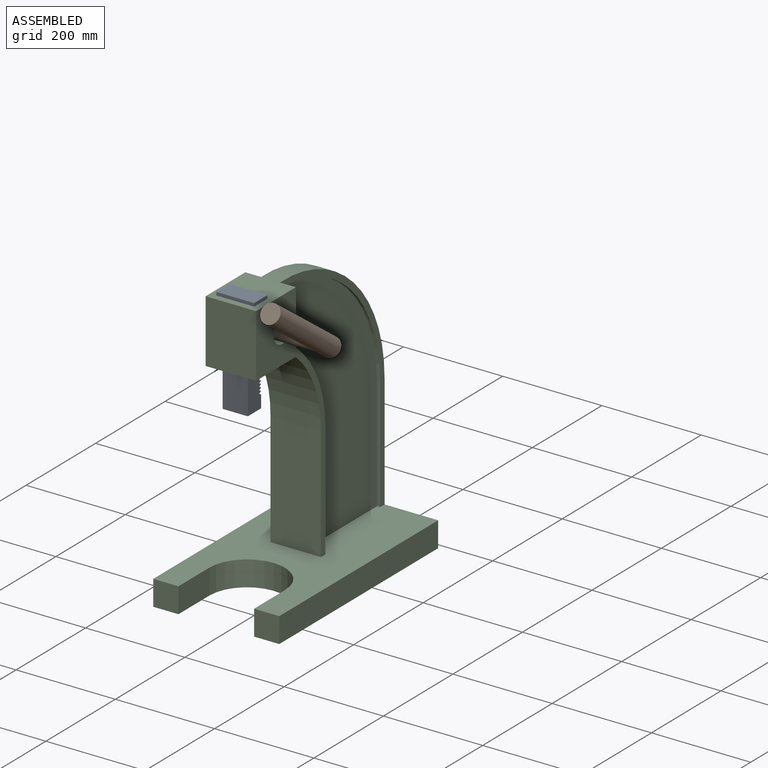
[diagram: assembled view]
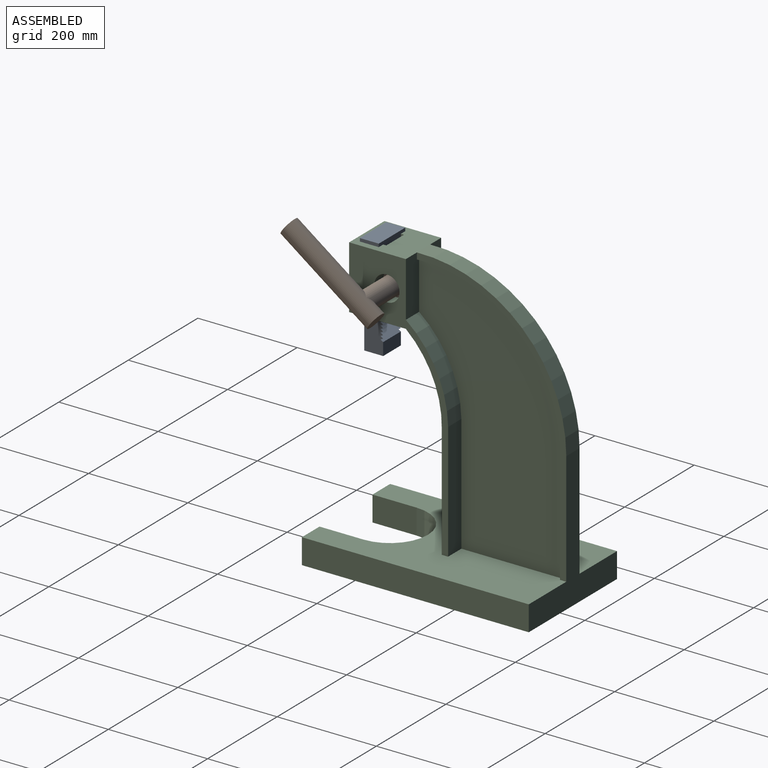
[diagram: assembled view, second angle]
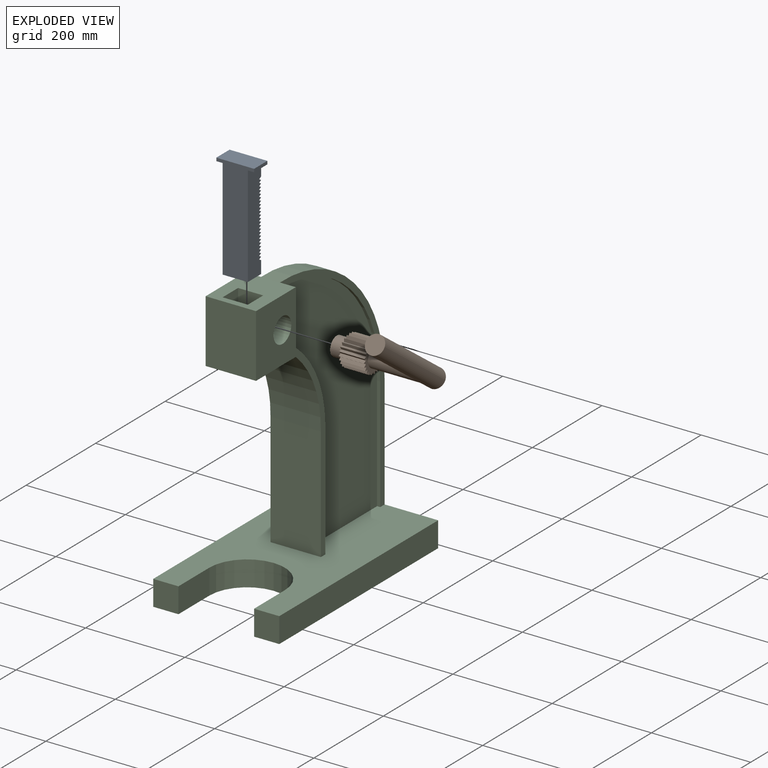
[diagram: exploded view]
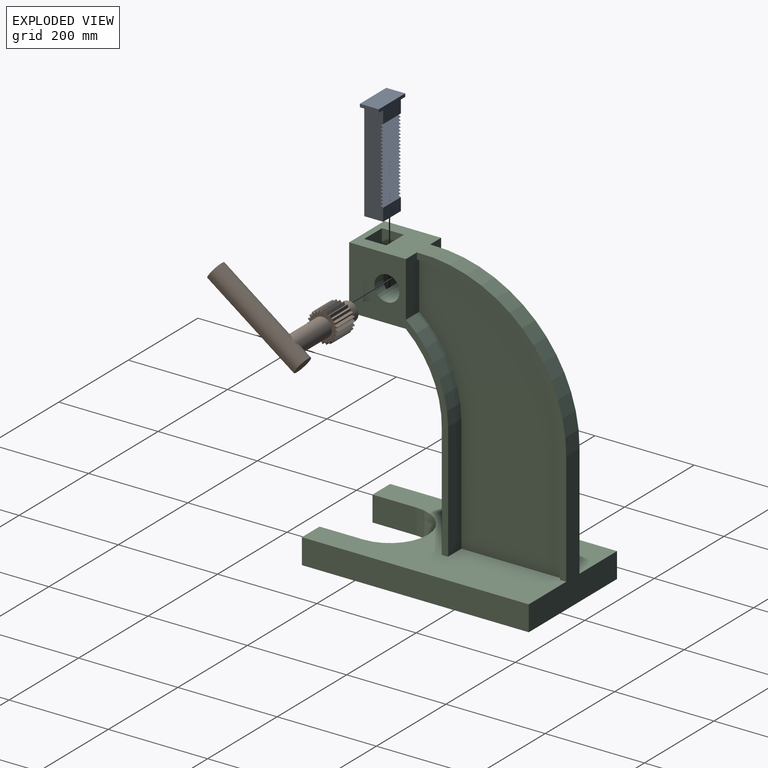
[diagram: exploded view, second angle]
ASSEMBLY  parts=3 mates=2
PART A: 59 faces, bbox 76.2x38.1x209.6 mm
  f0: plane 203.2x38.1mm, normal (-1,0,0), area 7322.9mm2, adj f1,f3,f4,f9,f10,f11,f12,f13
  f1: plane 76.2x31.75mm, normal (0,1,0), area 1774.2mm2, adj f0,f2,f3,f5,f6,f7,f8,f33
  f2: plane 38.1x6.35mm, normal (-1,0,0), area 241.9mm2, adj f1,f3,f8,f9
  f3: plane 38.1x12.7mm, normal (0,0,-1), area 483.9mm2, adj f0,f1,f2,f9
  f4: plane 50.8x38.1mm, normal (0,0,-1), area 1935.5mm2, adj f0,f5,f9,f10
  f5: plane 203.2x38.1mm, normal (1,0,0), area 7322.9mm2, adj f1,f4,f6,f9,f10,f11,f12,f13
  f6: plane 38.1x12.7mm, normal (0,0,-1), area 483.9mm2, adj f1,f5,f7,f9
  f7: plane 38.1x6.35mm, normal (1,0,0), area 241.9mm2, adj f1,f6,f8,f9
  f8: plane 76.2x38.1mm, normal (0,0,1), area 2903.2mm2, adj f1,f2,f7,f9
  f9: plane 209.55x76.2mm, normal (0,-1,0), area 10806.4mm2, adj f0,f2,f3,f4,f5,f6,f7,f8
  f10: plane 50.8x25.4mm, normal (0,1,0), area 1290.3mm2, adj f0,f4,f5,f52
  f11: plane 50.8x5.5mm, normal (0,0.5,-0.87), area 322.6mm2, adj f0,f5,f12,f56
  f12: plane 50.8x5.5mm, normal (0,0.5,0.87), area 322.6mm2, adj f0,f5,f11,f51
  f13: plane 50.8x5.5mm, normal (0,0.5,-0.87), area 322.6mm2, adj f0,f5,f14,f54
  f14: plane 50.8x5.5mm, normal (0,0.5,0.87), area 322.6mm2, adj f0,f5,f13,f55
  f15: plane 50.8x5.5mm, normal (0,0.5,-0.87), area 322.6mm2, adj f0,f5,f16,f58
  f16: plane 50.8x5.5mm, normal (0,0.5,0.87), area 322.6mm2, adj f0,f5,f15,f53
  f17: plane 50.8x5.5mm, normal (0,0.5,-0.87), area 322.6mm2, adj f0,f5,f18,f48
  f18: plane 50.8x5.5mm, normal (0,0.5,0.87), area 322.6mm2, adj f0,f5,f17,f45
  f19: plane 50.8x5.5mm, normal (0,0.5,-0.87), area 322.6mm2, adj f0,f5,f20,f50
  f20: plane 50.8x5.5mm, normal (0,0.5,0.87), area 322.6mm2, adj f0,f5,f19,f47
  f21: plane 50.8x5.5mm, normal (0,0.5,-0.87), area 322.6mm2, adj f0,f5,f22,f46
  f22: plane 50.8x5.5mm, normal (0,0.5,0.87), area 322.6mm2, adj f0,f5,f21,f57
  f23: plane 50.8x5.5mm, normal (0,0.5,-0.87), area 322.6mm2, adj f0,f5,f24,f42
  f24: plane 50.8x5.5mm, normal (0,0.5,0.87), area 322.6mm2, adj f0,f5,f23,f49
  f25: plane 50.8x5.5mm, normal (0,0.5,-0.87), area 322.6mm2, adj f0,f5,f26,f44
  f26: plane 50.8x5.5mm, normal (0,0.5,0.87), area 322.6mm2, adj f0,f5,f25,f41
  f27: plane 50.8x5.5mm, normal (0,0.5,-0.87), area 322.6mm2, adj f0,f5,f28,f40
  f28: plane 50.8x5.5mm, normal (0,0.5,0.87), area 322.6mm2, adj f0,f5,f27,f43
  f29: plane 50.8x5.5mm, normal (0,0.5,-0.87), area 322.6mm2, adj f0,f5,f30,f38
  f30: plane 50.8x5.5mm, normal (0,0.5,0.87), area 322.6mm2, adj f0,f5,f29,f39
  f31: plane 50.8x5.5mm, normal (0,0.5,-0.87), area 322.6mm2, adj f0,f5,f32,f36
  f32: plane 50.8x5.5mm, normal (0,0.5,0.87), area 322.6mm2, adj f0,f5,f31,f37
  f33: plane 50.8x5.5mm, normal (0,0.5,-0.87), area 322.6mm2, adj f0,f1,f5,f34
  f34: plane 50.8x5.5mm, normal (0,0.5,0.87), area 322.6mm2, adj f0,f5,f33,f35
  f35: plane 50.8x5.5mm, normal (0,0.5,-0.87), area 322.6mm2, adj f0,f5,f34,f36
  f36: plane 50.8x5.5mm, normal (0,0.5,0.87), area 322.6mm2, adj f0,f5,f31,f35
  f37: plane 50.8x5.5mm, normal (0,0.5,-0.87), area 322.6mm2, adj f0,f5,f32,f38
  f38: plane 50.8x5.5mm, normal (0,0.5,0.87), area 322.6mm2, adj f0,f5,f29,f37
  f39: plane 50.8x5.5mm, normal (0,0.5,-0.87), area 322.6mm2, adj f0,f5,f30,f40
  f40: plane 50.8x5.5mm, normal (0,0.5,0.87), area 322.6mm2, adj f0,f5,f27,f39
  f41: plane 50.8x5.5mm, normal (0,0.5,-0.87), area 322.6mm2, adj f0,f5,f26,f42
  f42: plane 50.8x5.5mm, normal (0,0.5,0.87), area 322.6mm2, adj f0,f5,f23,f41
  f43: plane 50.8x5.5mm, normal (0,0.5,-0.87), area 322.6mm2, adj f0,f5,f28,f44
  f44: plane 50.8x5.5mm, normal (0,0.5,0.87), area 322.6mm2, adj f0,f5,f25,f43
  f45: plane 50.8x5.5mm, normal (0,0.5,-0.87), area 322.6mm2, adj f0,f5,f18,f46
  f46: plane 50.8x5.5mm, normal (0,0.5,0.87), area 322.6mm2, adj f0,f5,f21,f45
  f47: plane 50.8x5.5mm, normal (0,0.5,-0.87), area 322.6mm2, adj f0,f5,f20,f48
  f48: plane 50.8x5.5mm, normal (0,0.5,0.87), area 322.6mm2, adj f0,f5,f17,f47
  f49: plane 50.8x5.5mm, normal (0,0.5,-0.87), area 322.6mm2, adj f0,f5,f24,f50
  f50: plane 50.8x5.5mm, normal (0,0.5,0.87), area 322.6mm2, adj f0,f5,f19,f49
  f51: plane 50.8x5.5mm, normal (0,0.5,-0.87), area 322.6mm2, adj f0,f5,f12,f52
  f52: plane 50.8x5.5mm, normal (0,0.5,0.87), area 322.6mm2, adj f0,f5,f10,f51
  f53: plane 50.8x5.5mm, normal (0,0.5,-0.87), area 322.6mm2, adj f0,f5,f16,f54
  f54: plane 50.8x5.5mm, normal (0,0.5,0.87), area 322.6mm2, adj f0,f5,f13,f53
  f55: plane 50.8x5.5mm, normal (0,0.5,-0.87), area 322.6mm2, adj f0,f5,f14,f56
  f56: plane 50.8x5.5mm, normal (0,0.5,0.87), area 322.6mm2, adj f0,f5,f11,f55
  f57: plane 50.8x5.5mm, normal (0,0.5,-0.87), area 322.6mm2, adj f0,f5,f22,f58
  f58: plane 50.8x5.5mm, normal (0,0.5,0.87), area 322.6mm2, adj f0,f5,f15,f57
PART B: 80 faces, bbox 196.9x197.8x156.5 mm
  f0: cylinder r=25.4mm len=50.8mm, axis (-1,0,0), area 0.9mm2, adj f28,f29,f69,f71
  f1: cylinder r=25.4mm len=50.8mm, axis (-1,0,0), area 0.9mm2, adj f28,f29,f67,f68
  f2: cylinder r=25.4mm len=50.8mm, axis (-1,0,0), area 0.9mm2, adj f28,f29,f65,f66
  f3: cylinder r=25.4mm len=50.8mm, axis (-1,0,0), area 0.9mm2, adj f28,f29,f63,f64
  f4: cylinder r=25.4mm len=50.8mm, axis (-1,0,0), area 0.9mm2, adj f28,f29,f61,f62
  f5: cylinder r=25.4mm len=50.8mm, axis (-1,0,0), area 0.9mm2, adj f28,f29,f59,f60
  f6: cylinder r=25.4mm len=50.8mm, axis (-1,0,0), area 0.9mm2, adj f28,f29,f57,f58
  f7: cylinder r=25.4mm len=50.8mm, axis (-1,0,0), area 0.9mm2, adj f28,f29,f55,f56
  f8: cylinder r=25.4mm len=50.8mm, axis (-1,0,0), area 0.9mm2, adj f28,f29,f53,f54
  f9: cylinder r=25.4mm len=50.8mm, axis (-1,0,0), area 0.9mm2, adj f28,f29,f51,f52
  f10: cylinder r=25.4mm len=50.8mm, axis (-1,0,0), area 0.9mm2, adj f28,f29,f49,f50
  f11: cylinder r=25.4mm len=50.8mm, axis (-1,0,0), area 0.9mm2, adj f28,f29,f47,f48
  f12: cylinder r=25.4mm len=50.8mm, axis (-1,0,0), area 0.9mm2, adj f28,f29,f45,f46
  f13: cylinder r=25.4mm len=50.8mm, axis (-1,0,0), area 0.9mm2, adj f28,f29,f43,f44
  f14: cylinder r=25.4mm len=50.8mm, axis (-1,0,0), area 0.9mm2, adj f28,f29,f41,f42
  f15: cylinder r=25.4mm len=50.8mm, axis (-1,0,0), area 0.9mm2, adj f28,f29,f39,f40
  f16: cylinder r=25.4mm len=50.8mm, axis (-1,0,0), area 0.9mm2, adj f28,f29,f37,f38
  f17: cylinder r=25.4mm len=50.8mm, axis (-1,0,0), area 0.9mm2, adj f28,f29,f35,f36
  f18: cylinder r=25.4mm len=50.8mm, axis (-1,0,0), area 0.9mm2, adj f28,f29,f33,f34
  f19: cylinder r=25.4mm len=50.8mm, axis (-1,0,0), area 0.9mm2, adj f28,f29,f32,f78
  f20: cylinder r=25.4mm len=50.8mm, axis (-1,0,0), area 0.9mm2, adj f28,f29,f77,f79
  f21: cylinder r=25.4mm len=50.8mm, axis (-1,0,0), area 0.9mm2, adj f28,f29,f75,f76
  f22: cylinder r=25.4mm len=50.8mm, axis (-1,0,0), area 0.9mm2, adj f28,f29,f73,f74
  f23: cylinder r=25.4mm len=50.8mm, axis (-1,0,0), area 0.9mm2, adj f28,f29,f70,f72
  f24: cylinder r=19.05mm len=101.6mm, axis (-1,0,0), area 10709.4mm2, adj f25,f28
  f25: cylinder r=19.05mm len=197.82mm, axis (0,-0.81,0.58), area 24390.5mm2, adj f24,f26,f27
  f26: plane 38.1x31mm, normal (0,-0.81,0.58), area 1140.1mm2, adj f25
  f27: plane 38.1x31mm, normal (0,0.81,-0.58), area 1140.1mm2, adj f25
  f28: plane 61.82x61.82mm, normal (1,0,0), area 1318.5mm2, adj f0,f1,f2,f3,f4,f5,f6,f7
  f29: plane 61.82x61.82mm, normal (-1,0,0), area 1318.5mm2, adj f0,f1,f2,f3,f4,f5,f6,f7
  f30: plane 38.1x38.1mm, normal (-1,0,0), area 1140.1mm2, adj f31
  f31: cylinder r=19.05mm len=38.1mm, axis (-1,0,0), area 3040.2mm2, adj f29,f30
  f32: plane 50.8x5.73mm, normal (0,0.87,0.5), area 336mm2, adj f19,f28,f29,f33
  f33: plane 50.8x5.73mm, normal (0,-0.87,0.5), area 336mm2, adj f18,f28,f29,f32
  f34: plane 50.8x4.68mm, normal (0,0.71,0.71), area 336mm2, adj f18,f28,f29,f35
  f35: plane 50.8x6.39mm, normal (0,-0.97,0.26), area 336mm2, adj f17,f28,f29,f34
  f36: plane 50.8x5.73mm, normal (0,0.5,0.87), area 336mm2, adj f17,f28,f29,f37
  f37: plane 50.8x6.61mm, normal (0,-1,0), area 336mm2, adj f16,f28,f29,f36
  f38: plane 50.8x6.39mm, normal (0,0.26,0.97), area 336mm2, adj f16,f28,f29,f39
  f39: plane 50.8x6.39mm, normal (0,-0.97,-0.26), area 336mm2, adj f15,f28,f29,f38
  f40: plane 50.8x6.61mm, normal (0,0,1), area 336mm2, adj f15,f28,f29,f41
  f41: plane 50.8x5.73mm, normal (0,-0.87,-0.5), area 336mm2, adj f14,f28,f29,f40
  f42: plane 50.8x6.39mm, normal (0,-0.26,0.97), area 336mm2, adj f14,f28,f29,f43
  f43: plane 50.8x4.68mm, normal (0,-0.71,-0.71), area 336mm2, adj f13,f28,f29,f42
  f44: plane 50.8x5.73mm, normal (0,-0.5,0.87), area 336mm2, adj f13,f28,f29,f45
  f45: plane 50.8x5.73mm, normal (0,-0.5,-0.87), area 336mm2, adj f12,f28,f29,f44
  f46: plane 50.8x4.68mm, normal (0,-0.71,0.71), area 336mm2, adj f12,f28,f29,f47
  f47: plane 50.8x6.39mm, normal (0,-0.26,-0.97), area 336mm2, adj f11,f28,f29,f46
  f48: plane 50.8x5.73mm, normal (0,-0.87,0.5), area 336mm2, adj f11,f28,f29,f49
  f49: plane 50.8x6.61mm, normal (0,0,-1), area 336mm2, adj f10,f28,f29,f48
  f50: plane 50.8x6.39mm, normal (0,-0.97,0.26), area 336mm2, adj f10,f28,f29,f51
  f51: plane 50.8x6.39mm, normal (0,0.26,-0.97), area 336mm2, adj f9,f28,f29,f50
  f52: plane 50.8x6.61mm, normal (0,-1,0), area 336mm2, adj f9,f28,f29,f53
  f53: plane 50.8x5.73mm, normal (0,0.5,-0.87), area 336mm2, adj f8,f28,f29,f52
  f54: plane 50.8x6.39mm, normal (0,-0.97,-0.26), area 336mm2, adj f8,f28,f29,f55
  f55: plane 50.8x4.68mm, normal (0,0.71,-0.71), area 336mm2, adj f7,f28,f29,f54
  f56: plane 50.8x5.73mm, normal (0,-0.87,-0.5), area 336mm2, adj f7,f28,f29,f57
  f57: plane 50.8x5.73mm, normal (0,0.87,-0.5), area 336mm2, adj f6,f28,f29,f56
  f58: plane 50.8x4.68mm, normal (0,-0.71,-0.71), area 336mm2, adj f6,f28,f29,f59
  f59: plane 50.8x6.39mm, normal (0,0.97,-0.26), area 336mm2, adj f5,f28,f29,f58
  f60: plane 50.8x5.73mm, normal (0,-0.5,-0.87), area 336mm2, adj f5,f28,f29,f61
  f61: plane 50.8x6.61mm, normal (0,1,0), area 336mm2, adj f4,f28,f29,f60
  f62: plane 50.8x6.39mm, normal (0,-0.26,-0.97), area 336mm2, adj f4,f28,f29,f63
  f63: plane 50.8x6.39mm, normal (0,0.97,0.26), area 336mm2, adj f3,f28,f29,f62
  f64: plane 50.8x6.61mm, normal (0,0,-1), area 336mm2, adj f3,f28,f29,f65
  f65: plane 50.8x5.73mm, normal (0,0.87,0.5), area 336mm2, adj f2,f28,f29,f64
  f66: plane 50.8x6.39mm, normal (0,0.26,-0.97), area 336mm2, adj f2,f28,f29,f67
  f67: plane 50.8x4.68mm, normal (0,0.71,0.71), area 336mm2, adj f1,f28,f29,f66
  f68: plane 50.8x5.73mm, normal (0,0.5,-0.87), area 336mm2, adj f1,f28,f29,f69
  f69: plane 50.8x5.73mm, normal (0,0.5,0.87), area 336mm2, adj f0,f28,f29,f68
  f70: plane 50.8x6.39mm, normal (0,0.26,0.97), area 336mm2, adj f23,f28,f29,f71
  f71: plane 50.8x4.68mm, normal (0,0.71,-0.71), area 336mm2, adj f0,f28,f29,f70
  f72: plane 50.8x5.73mm, normal (0,0.87,-0.5), area 336mm2, adj f23,f28,f29,f73
  f73: plane 50.8x6.61mm, normal (0,0,1), area 336mm2, adj f22,f28,f29,f72
  f74: plane 50.8x6.39mm, normal (0,0.97,-0.26), area 336mm2, adj f22,f28,f29,f75
  f75: plane 50.8x6.39mm, normal (0,-0.26,0.97), area 336mm2, adj f21,f28,f29,f74
  f76: plane 50.8x6.61mm, normal (0,1,0), area 336mm2, adj f21,f28,f29,f77
  f77: plane 50.8x5.73mm, normal (0,-0.5,0.87), area 336mm2, adj f20,f28,f29,f76
  f78: plane 50.8x4.68mm, normal (0,-0.71,0.71), area 336mm2, adj f19,f28,f29,f79
  f79: plane 50.8x6.39mm, normal (0,0.97,0.26), area 336mm2, adj f20,f28,f29,f78
PART C: 38 faces, bbox 254x457.2x570.1 mm
  f0: cylinder r=25.4mm len=101.6mm, axis (-1,0,0), area 14349.5mm2, adj f15,f20,f32,f33,f34,f35
  f1: plane 50.8x50.8mm, normal (0,-1,0), area 2580.6mm2, adj f2,f25,f28,f29
  f2: plane 457.2x254mm, normal (0,0,-1), area 93459.7mm2, adj f1,f7,f26,f27,f28,f29,f30,f31
  f3: plane 506.55x288.29mm, normal (1,0,0), area 99228.3mm2, adj f12,f13,f18,f19,f21,f25
  f4: plane 506.55x288.29mm, normal (-1,0,0), area 99228.3mm2, adj f10,f11,f16,f17,f22,f25
  f5: cylinder r=212.29mm len=163.51mm, axis (-1,0,0), area 18753.4mm2, adj f6,f15,f20,f24
  f6: plane 228.55x101.6mm, normal (0,-1,0), area 23221.1mm2, adj f5,f15,f20,f25
  f7: plane 279.4x254mm, normal (0,1,0), area 21612.9mm2, adj f2,f8,f9,f14,f25,f27,f28
  f8: cylinder r=290.65mm len=300.99mm, axis (-1,0,0), area 17788.7mm2, adj f7,f9,f14,f23
  f9: plane 519.25x300.99mm, normal (-1,0,0), area 8706.1mm2, adj f7,f8,f10,f11,f22,f25
  f10: plane 228.6x6.35mm, normal (0,-1,0), area 1451.6mm2, adj f4,f9,f11,f25
  f11: cylinder r=277.95mm len=288.29mm, axis (-1,0,0), area 2838.1mm2, adj f4,f9,f10,f22
  f12: cylinder r=277.95mm len=288.29mm, axis (-1,0,0), area 2838.1mm2, adj f3,f13,f14,f21
  f13: plane 228.6x6.35mm, normal (0,-1,0), area 1451.6mm2, adj f3,f12,f14,f25
  f14: plane 519.25x300.99mm, normal (1,0,0), area 8706.1mm2, adj f7,f8,f12,f13,f21,f25
  f15: plane 519.07x199.39mm, normal (-1,0,0), area 17874.2mm2, adj f0,f5,f6,f16,f17,f22,f23,f24
  f16: cylinder r=224.99mm len=172.31mm, axis (-1,0,0), area 7565mm2, adj f4,f15,f17,f22
  f17: plane 236.29x38.1mm, normal (0,1,0), area 9002.6mm2, adj f4,f15,f16,f25
  f18: plane 236.29x38.1mm, normal (0,1,0), area 9002.6mm2, adj f3,f19,f20,f25
  f19: cylinder r=224.99mm len=172.31mm, axis (-1,0,0), area 7565mm2, adj f3,f18,f20,f21
  f20: plane 519.07x199.39mm, normal (1,0,0), area 17874.2mm2, adj f0,f5,f6,f18,f19,f21,f23,f24
  f21: plane 110.47x38.1mm, normal (0,1,0), area 4128.2mm2, adj f3,f12,f14,f19,f20,f23
  f22: plane 110.47x38.1mm, normal (0,1,0), area 4128.2mm2, adj f4,f9,f11,f15,f16,f23
  f23: plane 114.3x101.6mm, normal (0,0,1), area 9354.8mm2, adj f8,f15,f20,f21,f22,f32,f33,f35
  f24: plane 114.3x101.6mm, normal (0,0,-1), area 9354.8mm2, adj f5,f15,f20,f33,f34,f35,f36,f37
  f25: plane 457.2x254mm, normal (0,0,1), area 86524.2mm2, adj f1,f3,f4,f6,f7,f9,f10,f13
  f26: plane 50.8x50.8mm, normal (0,-1,0), area 2580.6mm2, adj f2,f25,f27,f31
  f27: plane 457.2x50.8mm, normal (1,0,0), area 23225.8mm2, adj f2,f7,f25,f26
  f28: plane 457.2x50.8mm, normal (-1,0,0), area 23225.8mm2, adj f1,f2,f7,f25
  f29: plane 88.9x50.8mm, normal (1,0,0), area 4516.1mm2, adj f1,f2,f25,f30
  f30: cylinder r=76.2mm len=152.4mm, axis (0,0,-1), area 12161mm2, adj f2,f25,f29,f31
  f31: plane 88.9x50.8mm, normal (-1,0,0), area 4516.1mm2, adj f2,f25,f26,f30
  f32: plane 50.8x46.7mm, normal (0,-1,0), area 2372.3mm2, adj f0,f23,f33,f35
  f33: plane 127x44.45mm, normal (-1,0,0), area 5498.9mm2, adj f0,f23,f24,f32,f34,f36
  f34: plane 50.8x46.7mm, normal (0,-1,0), area 2372.3mm2, adj f0,f24,f33,f35
  f35: plane 127x44.45mm, normal (1,0,0), area 5498.9mm2, adj f0,f23,f24,f32,f34,f36
  f36: plane 127x50.8mm, normal (0,1,0), area 6451.6mm2, adj f23,f24,f33,f35
  f37: plane 127x101.6mm, normal (0,-1,0), area 12903.2mm2, adj f15,f20,f23,f24
PLACE A t=(-213.3,-16.95,473.45)mm
PLACE B rot(axis=(-1,0,0),0.5deg) t=(-213.3,-95.19,107.87)mm
PLACE C t=(-213.3,-90.61,106.78)mm fixed
MATE revolute B.f0 <-> C.f0  axis (-1,0,0) through (-264.1,27.5,613.15)mm
MATE slider C.f23 <-> A.f6  axis (0,0,1) through (-187.9,-36,676.65)mm
